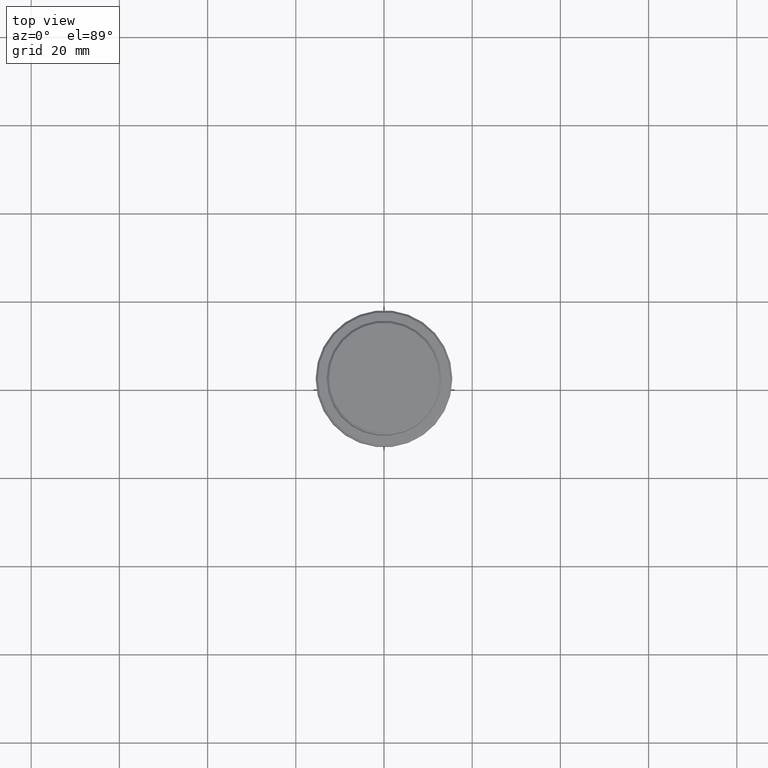
[diagram: clean part render]
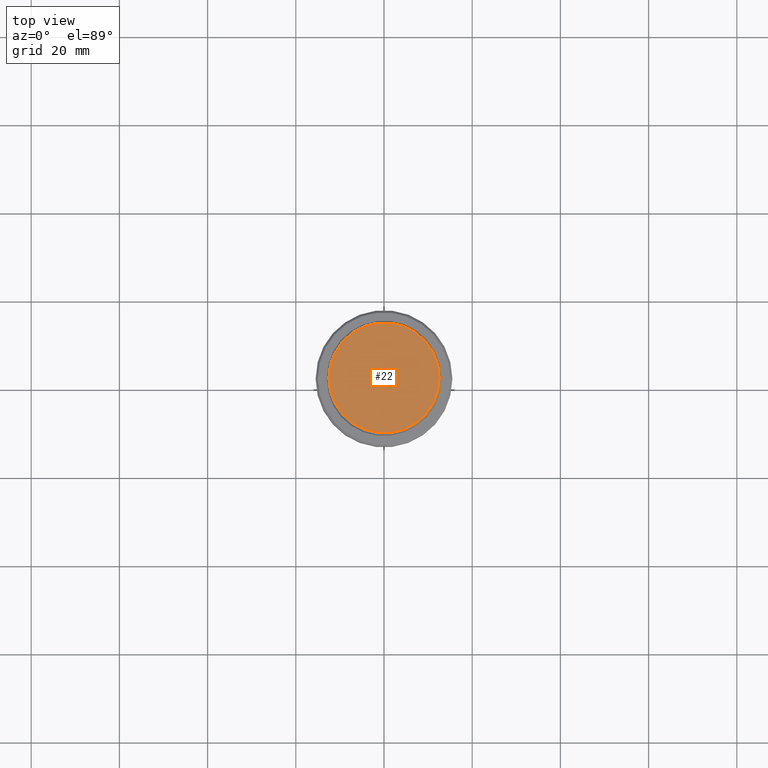
[diagram: same view with one face highlighted and labeled with its STEP entity id]
A machine part, top view. The second image highlights one B-rep face of the part: STEP entity #22.
In plain terms, the highlighted planar face has unit normal (0, -0, 1).
Its self-contained STEP definition (entity closure, byte-faithful):
#5 = CARTESIAN_POINT ( 'NONE',  ( 0.000000000000000000, 0.000000000000000000, 0.000000000000000000 ) ) ;
#17 = AXIS2_PLACEMENT_3D ( 'NONE', #305, #1178, #895 ) ;
#22 = ADVANCED_FACE ( 'NONE', ( #1196 ), #1086, .T. ) ;
#43 = DIRECTION ( 'NONE',  ( 1.000000000000000000, 0.000000000000000000, 0.000000000000000000 ) ) ;
#305 = CARTESIAN_POINT ( 'NONE',  ( 0.000000000000000000, 0.000000000000000000, 0.000000000000000000 ) ) ;
#334 = CIRCLE ( 'NONE', #1302, 12.50000000000004086 ) ;
#396 = CARTESIAN_POINT ( 'NONE',  ( 0.000000000000000000, 0.000000000000000000, 0.000000000000000000 ) ) ;
#426 = VERTEX_POINT ( 'NONE', #591 ) ;
#431 = DIRECTION ( 'NONE',  ( 0.000000000000000000, -0.000000000000000000, 1.000000000000000000 ) ) ;
#492 = ORIENTED_EDGE ( 'NONE', *, *, #773, .T. ) ;
#591 = CARTESIAN_POINT ( 'NONE',  ( -12.50000000000004086, 0.000000000000000000, 0.000000000000000000 ) ) ;
#665 = EDGE_LOOP ( 'NONE', ( #492, #838 ) ) ;
#773 = EDGE_CURVE ( 'NONE', #426, #1212, #334, .T. ) ;
#802 = CARTESIAN_POINT ( 'NONE',  ( 12.50000000000004086, 1.561424668912877675E-15, 0.000000000000000000 ) ) ;
#838 = ORIENTED_EDGE ( 'NONE', *, *, #843, .T. ) ;
#843 = EDGE_CURVE ( 'NONE', #1212, #426, #1281, .T. ) ;
#888 = DIRECTION ( 'NONE',  ( 1.000000000000000000, 0.000000000000000000, 0.000000000000000000 ) ) ;
#895 = DIRECTION ( 'NONE',  ( 1.000000000000000000, 0.000000000000000000, 0.000000000000000000 ) ) ;
#1043 = DIRECTION ( 'NONE',  ( -0.000000000000000000, -0.000000000000000000, 1.000000000000000000 ) ) ;
#1086 = PLANE ( 'NONE',  #1130 ) ;
#1130 = AXIS2_PLACEMENT_3D ( 'NONE', #5, #431, #888 ) ;
#1178 = DIRECTION ( 'NONE',  ( -0.000000000000000000, -0.000000000000000000, 1.000000000000000000 ) ) ;
#1196 = FACE_OUTER_BOUND ( 'NONE', #665, .T. ) ;
#1212 = VERTEX_POINT ( 'NONE', #802 ) ;
#1281 = CIRCLE ( 'NONE', #17, 12.50000000000004086 ) ;
#1302 = AXIS2_PLACEMENT_3D ( 'NONE', #396, #1043, #43 ) ;